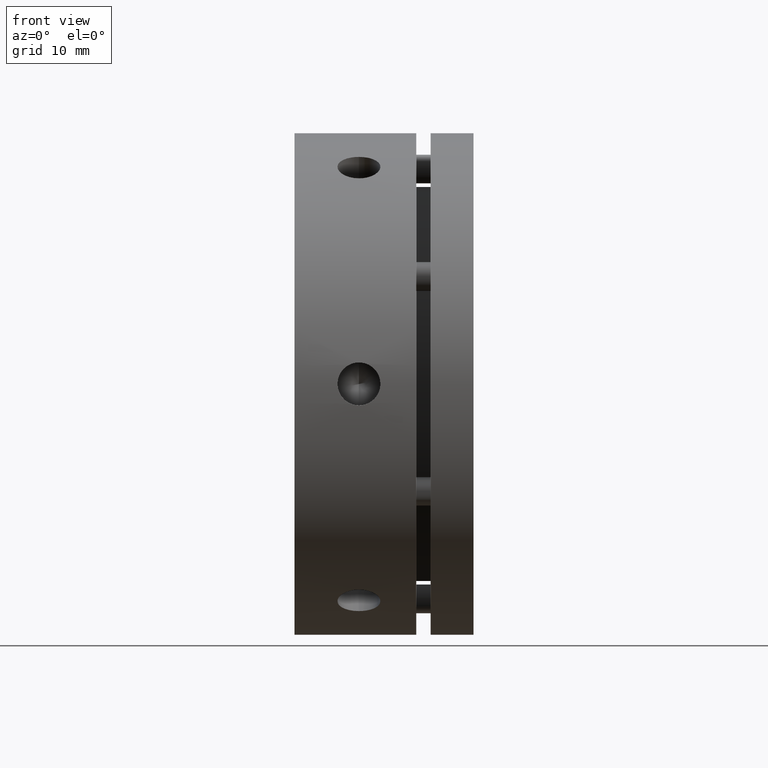
[diagram: clean part render]
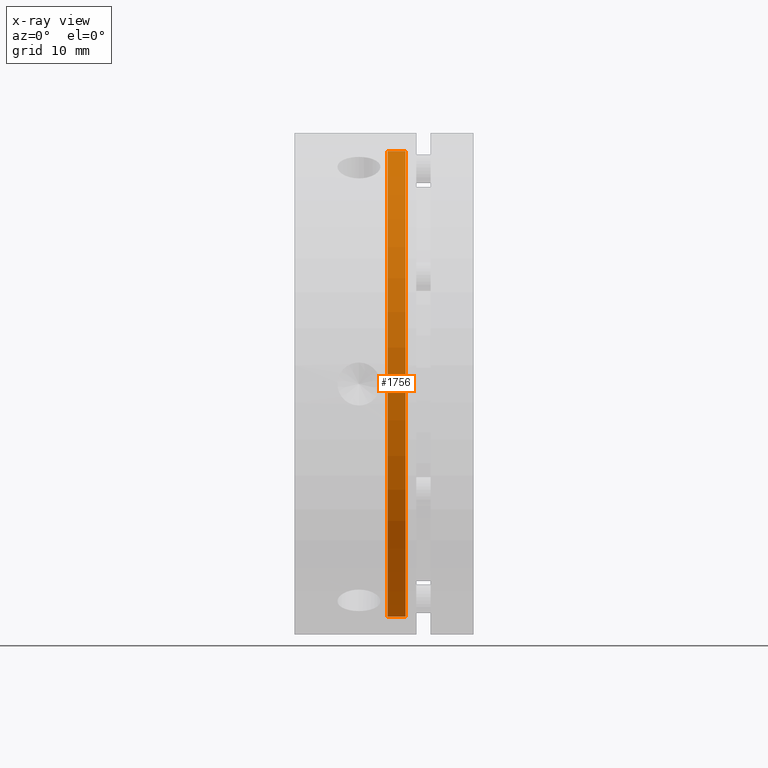
[diagram: x-ray — body ghosted, one internal face saturated and labeled with its STEP entity id]
A machine part, front view, then the same camera in x-ray: the body is ghosted and one INTERNAL B-rep face — a face not visible from any outside direction — is saturated and labeled: STEP entity #1756.
In plain terms, the highlighted cylindrical surface (partial cylindrical patch) has radius 32.5 mm, axis along (-1, 0, 0).
Its self-contained STEP definition (entity closure, byte-faithful):
#10 = AXIS2_PLACEMENT_3D ( 'NONE', #2047, #2048, #2049 ) ;
#11 = AXIS2_PLACEMENT_3D ( 'NONE', #2051, #2052, #2053 ) ;
#110 = AXIS2_PLACEMENT_3D ( 'NONE', #3346, #3344, #3342 ) ;
#499 = EDGE_LOOP ( 'NONE', ( #1058, #944, #937, #947 ) ) ;
#765 = VERTEX_POINT ( 'NONE', #1914 ) ;
#766 = VERTEX_POINT ( 'NONE', #1915 ) ;
#771 = VERTEX_POINT ( 'NONE', #1920 ) ;
#772 = VERTEX_POINT ( 'NONE', #1921 ) ;
#915 = CIRCLE ( 'NONE', #10, 32.50000000000000700 ) ;
#918 = LINE ( 'NONE', #2046, #922 ) ;
#921 = CIRCLE ( 'NONE', #11, 32.50000000000000700 ) ;
#922 = VECTOR ( 'NONE', #2043, 1000.000000000000000 ) ;
#923 = LINE ( 'NONE', #2044, #925 ) ;
#925 = VECTOR ( 'NONE', #2045, 1000.000000000000000 ) ;
#937 = ORIENTED_EDGE ( 'NONE', *, *, #1386, .T. ) ;
#944 = ORIENTED_EDGE ( 'NONE', *, *, #1385, .T. ) ;
#947 = ORIENTED_EDGE ( 'NONE', *, *, #1387, .F. ) ;
#1058 = ORIENTED_EDGE ( 'NONE', *, *, #1384, .T. ) ;
#1384 = EDGE_CURVE ( 'NONE', #765, #766, #915, .T. ) ;
#1385 = EDGE_CURVE ( 'NONE', #766, #771, #918, .T. ) ;
#1386 = EDGE_CURVE ( 'NONE', #771, #772, #921, .T. ) ;
#1387 = EDGE_CURVE ( 'NONE', #765, #772, #923, .T. ) ;
#1756 = ADVANCED_FACE ( 'NONE', ( #2634 ), #2642, .F. ) ;
#1914 = CARTESIAN_POINT ( 'NONE',  ( 15.50000000000000400, 0.0000000000000000000, 32.50000000000000700 ) ) ;
#1915 = CARTESIAN_POINT ( 'NONE',  ( 15.50000000000000400, 3.980102097228899400E-015, -32.50000000000000700 ) ) ;
#1920 = CARTESIAN_POINT ( 'NONE',  ( 13.00000000000001100, 3.980102097228899400E-015, -32.50000000000000700 ) ) ;
#1921 = CARTESIAN_POINT ( 'NONE',  ( 13.00000000000001100, 0.0000000000000000000, 32.50000000000000700 ) ) ;
#2043 = DIRECTION ( 'NONE',  ( -1.000000000000000000, 0.0000000000000000000, 0.0000000000000000000 ) ) ;
#2044 = CARTESIAN_POINT ( 'NONE',  ( 14.25000000000000700, 0.0000000000000000000, 32.50000000000000700 ) ) ;
#2045 = DIRECTION ( 'NONE',  ( -1.000000000000000000, 0.0000000000000000000, 0.0000000000000000000 ) ) ;
#2046 = CARTESIAN_POINT ( 'NONE',  ( 14.25000000000000700, 3.980102097228899400E-015, -32.50000000000000700 ) ) ;
#2047 = CARTESIAN_POINT ( 'NONE',  ( 15.50000000000000400, 0.0000000000000000000, 0.0000000000000000000 ) ) ;
#2048 = DIRECTION ( 'NONE',  ( 1.000000000000000000, -0.0000000000000000000, -0.0000000000000000000 ) ) ;
#2049 = DIRECTION ( 'NONE',  ( 0.0000000000000000000, 0.0000000000000000000, 1.000000000000000000 ) ) ;
#2051 = CARTESIAN_POINT ( 'NONE',  ( 13.00000000000001100, 0.0000000000000000000, 0.0000000000000000000 ) ) ;
#2052 = DIRECTION ( 'NONE',  ( -1.000000000000000000, 0.0000000000000000000, 0.0000000000000000000 ) ) ;
#2053 = DIRECTION ( 'NONE',  ( 0.0000000000000000000, 0.0000000000000000000, 1.000000000000000000 ) ) ;
#2634 = FACE_OUTER_BOUND ( 'NONE', #499, .T. ) ;
#2642 = CYLINDRICAL_SURFACE ( 'NONE', #110, 32.50000000000000700 ) ;
#3342 = DIRECTION ( 'NONE',  ( 0.0000000000000000000, 0.0000000000000000000, 1.000000000000000000 ) ) ;
#3344 = DIRECTION ( 'NONE',  ( -1.000000000000000000, 0.0000000000000000000, 0.0000000000000000000 ) ) ;
#3346 = CARTESIAN_POINT ( 'NONE',  ( 14.25000000000000700, 0.0000000000000000000, 0.0000000000000000000 ) ) ;